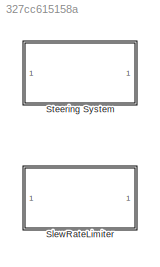
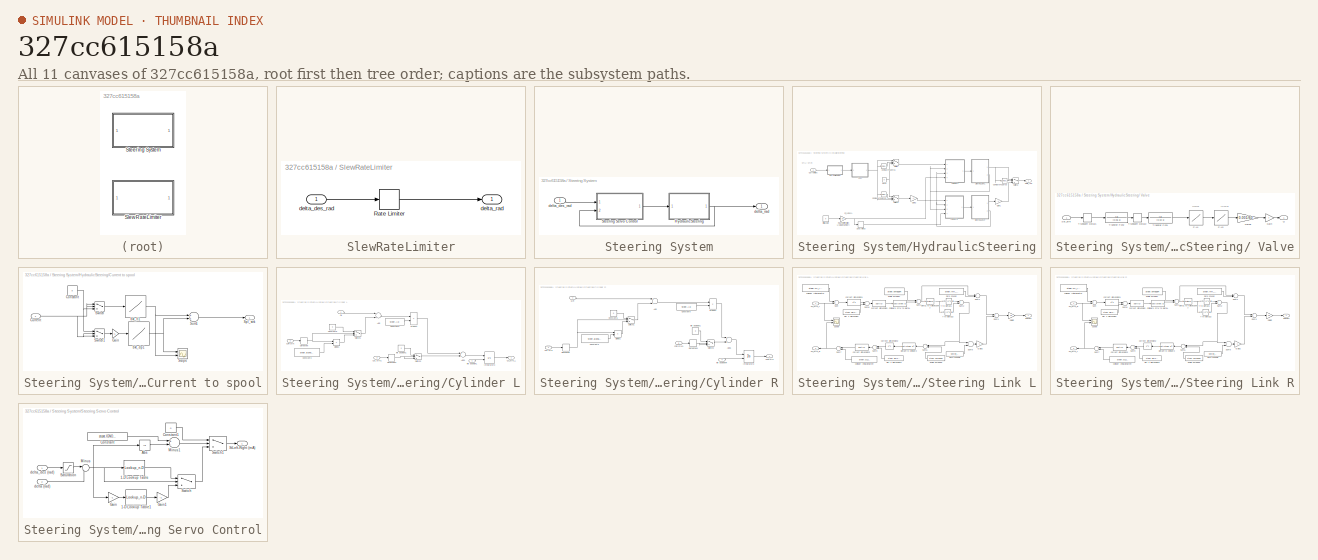
[diagram: thumbnail index - all 11 canvases of the model, root first then tree order]
MODEL slx_327cc615158a
KIND model
CONFIG AbsTol = auto
CONFIG EnableMultiTasking = off
CONFIG FixedStep = auto
CONFIG MaxStep = auto
CONFIG MinStep = auto
CONFIG RelTol = 1e-3
CONFIG SampleTimeConstraint = Unconstrained
CONFIG Solver = VariableStepAuto
CONFIG SolverName = VariableStepAuto
CONFIG StartTime = 0.0
CONFIG StopTime = 10.0
BLOCK [SubSystem] SlewRateLimiter
  Ports = [1, 1]
  RequestExecContextInheritance = off
BLOCK [RateLimiter] SlewRateLimiter/Rate Limiter
  FallingSlewLimit = -steer.deltaRateMax_radps
  RisingSlewLimit = steer.deltaRateMax_radps
  SampleTimeMode = inherited
BLOCK [Inport] SlewRateLimiter/delta_des_rad
  IconDisplay = Port number
BLOCK [Outport] SlewRateLimiter/delta_rad
  IconDisplay = Port number
BLOCK [SubSystem] Steering System
  Ports = [1, 1]
  RequestExecContextInheritance = off
BLOCK [SubSystem] Steering System/HydraulicSteering
  Description = Current: STバルブスプール電流の (右出\nST_0: ステア角 初期値
  Ports = [1, 1]
  RequestExecContextInheritance = off
  ShowPortLabels = SignalName
BLOCK [SubSystem] Steering System/HydraulicSteering/ Valve
  Ports = [1, 1]
  RequestExecContextInheritance = off
BLOCK [Gain] Steering System/HydraulicSteering/ Valve/Gain
  Gain = 7
  OutDataTypeStr = Inherit: Inherit via internal rule
  ParamDataTypeStr = Inherit: Inherit via internal rule
  SaturateOnIntegerOverflow = off
BLOCK [Gain] Steering System/HydraulicSteering/ Valve/Gain5
  Gain = 0.001/60
BLOCK [Lookup] Steering System/HydraulicSteering/ Valve/P-L1
  InputValues = [-7 -6 -5.5 -5 -4 -3 -2 0 2 3 4 5 5.5 6 7]
  Table = [-35 -15 -9 -7.4 -4.2 -1.4 0 0 0 1.4 4.2 7.4 9 15 35]
BLOCK [Lookup] Steering System/HydraulicSteering/ Valve/P-L3
  InputValues = [-35 -15 -7.4 -5.8 -4.2 -2.8 -1.4 -0.7 -0.28 0 0.28 0.7 1.4 2.8 4.2 5.8 7.4 15 35]
  Table = [-35.5 -15.3 -9.7 -7.4 -5.4 -3.6 -2.15 -1.1 -0.6 0 0.6 1.1 2.15 3.6 5.4 7.4 9.7 15.3 35.5]
BLOCK [Outport] Steering System/HydraulicSteering/ Valve/Q
  IconDisplay = Port number
BLOCK [Inport] Steering System/HydraulicSteering/ Valve/Spl_strk
  IconDisplay = Port number
BLOCK [TransferFcn] Steering System/HydraulicSteering/ Valve/Transfer Fcn1
  Denominator = [0.02 1]
BLOCK [TransferFcn] Steering System/HydraulicSteering/ Valve/Transfer Fcn2
  Denominator = [0.06 1]
BLOCK [TransportDelay] Steering System/HydraulicSteering/ Valve/Transport Delay1
  DelayTime = 0.1
  Ports = [1, 1]
BLOCK [TransportDelay] Steering System/HydraulicSteering/ Valve/Transport Delay2
  DelayTime = 0.05
  Ports = [1, 1]
BLOCK [Reference] Steering System/HydraulicSteering/Compare To Zero1  REF=simulink/Logic and Bit
Operations/Compare
To Zero
  Ports = [1, 1]
  SourceBlock = simulink/Logic and Bit\nOperations/Compare\nTo Zero
  SourceProductBaseCode = SL
  SourceProductName = Simulink
  SourceType = Compare To Zero
BLOCK [Reference] Steering System/HydraulicSteering/Compare To Zero2  REF=simulink/Logic and Bit
Operations/Compare
To Zero
  Ports = [1, 1]
  SourceBlock = simulink/Logic and Bit\nOperations/Compare\nTo Zero
  SourceProductBaseCode = SL
  SourceProductName = Simulink
  SourceType = Compare To Zero
BLOCK [Reference] Steering System/HydraulicSteering/Compare To Zero3  REF=simulink/Logic and Bit
Operations/Compare
To Zero
  Ports = [1, 1]
  SourceBlock = simulink/Logic and Bit\nOperations/Compare\nTo Zero
  SourceProductBaseCode = SL
  SourceProductName = Simulink
  SourceType = Compare To Zero
BLOCK [SubSystem] Steering System/HydraulicSteering/Current to spool
  Ports = [1, 1]
  RequestExecContextInheritance = off
BLOCK [Constant] Steering System/HydraulicSteering/Current to spool/Constant
  Value = 0
BLOCK [Inport] Steering System/HydraulicSteering/Current to spool/Current
  IconDisplay = Port number
BLOCK [Gain] Steering System/HydraulicSteering/Current to spool/Gain
  Gain = -1
  OutDataTypeStr = Inherit: Inherit via internal rule
  ParamDataTypeStr = Inherit: Inherit via internal rule
  SaturateOnIntegerOverflow = off
BLOCK [Scope] Steering System/HydraulicSteering/Current to spool/Scope
  Floating = off
  NumInputPorts = 2
  Ports = [2]
  ScopeSpecificationString = C++SS(StrPVP('Location','[1585, 68, 2247, 528]'),StrPVP('Open','off'),StrPVP('ZoomMode','yonly'),MxPVP('AxesTitles',53,'struct(''axes1'',''%<SignalLabel>'',''axes2'',''%<SignalLabel>'')'),StrPVP('YMin','-5~-5'),StrPVP('YMax','5~5'),StrPVP('SaveName','ScopeData4'),StrPVP('DataFormat','StructureWithTime'),StrPVP('BlockParamSampleTime','0'),StrPVP('LimitDataPoints','on'),StrPVP('Decimation','1'),StrP...<+34ch>
BLOCK [Outport] Steering System/HydraulicSteering/Current to spool/Spl_strk
  IconDisplay = Port number
BLOCK [Sum] Steering System/HydraulicSteering/Current to spool/Sum1
  InputSameDT = off
  OutDataTypeStr = Inherit: Inherit via internal rule
  Ports = [2, 1]
BLOCK [Switch] Steering System/HydraulicSteering/Current to spool/Switch
  InputSameDT = off
  SaturateOnIntegerOverflow = off
BLOCK [Switch] Steering System/HydraulicSteering/Current to spool/Switch1
  InputSameDT = off
  SaturateOnIntegerOverflow = off
BLOCK [Lookup] Steering System/HydraulicSteering/Current to spool/bkt_dp1
  InputValues = [0 400 450 500 550 600 650 1000]
  Table = [0 -2 -3 -4 -5 -6 -7 -7]
BLOCK [Lookup] Steering System/HydraulicSteering/Current to spool/bkt_tl1
  InputValues = [0 400 450 500 550 600 650 1000]
  Table = [0 2 3 4 5 6 7 7]
BLOCK [Inport] Steering System/HydraulicSteering/Current[mA]
  IconDisplay = Port number
BLOCK [SubSystem] Steering System/HydraulicSteering/Cylinder L
  Ports = [4, 1]
  RequestExecContextInheritance = off
BLOCK [Sum] Steering System/HydraulicSteering/Cylinder L/Add
  InputSameDT = off
  OutDataTypeStr = Inherit: Inherit via internal rule
  Ports = [2, 1]
  SaturateOnIntegerOverflow = off
BLOCK [Sum] Steering System/HydraulicSteering/Cylinder L/Add1
  InputSameDT = off
  OutDataTypeStr = Inherit: Inherit via internal rule
  Ports = [2, 1]
  SaturateOnIntegerOverflow = off
BLOCK [Constant] Steering System/HydraulicSteering/Cylinder L/Constant3
  Value = steer.alpha*steer.Ap
BLOCK [Constant] Steering System/HydraulicSteering/Cylinder L/Constant5
  Value = steer.Ap
BLOCK [Constant] Steering System/HydraulicSteering/Cylinder L/Constant6
  Value = 0
BLOCK [Inport] Steering System/HydraulicSteering/Cylinder L/CylL strk1
  IconDisplay = Port number
  Port = 3
BLOCK [Inport] Steering System/HydraulicSteering/Cylinder L/CylR strk
  IconDisplay = Port number
  Port = 2
BLOCK [Outport] Steering System/HydraulicSteering/Cylinder L/Cyl_strk_L
  IconDisplay = Port number
BLOCK [Derivative] Steering System/HydraulicSteering/Cylinder L/Derivative
BLOCK [Derivative] Steering System/HydraulicSteering/Cylinder L/Derivative1
BLOCK [Product] Steering System/HydraulicSteering/Cylinder L/Divide1
  InputSameDT = off
  Inputs = **
  OutDataTypeStr = Inherit: Inherit via internal rule
  Ports = [2, 1]
  RndMeth = Floor
  SaturateOnIntegerOverflow = off
BLOCK [Integrator] Steering System/HydraulicSteering/Cylinder L/Integrator3
  InitialConditionSource = external
  LimitOutput = on
  LowerSaturationLimit = steer.xpmin
  Ports = [2, 1]
  UpperSaturationLimit = steer.xpmax
BLOCK [Product] Steering System/HydraulicSteering/Cylinder L/Product
  InputSameDT = off
  Inputs = */
  OutDataTypeStr = Inherit: Inherit via internal rule
  Ports = [2, 1]
  SaturateOnIntegerOverflow = off
BLOCK [Inport] Steering System/HydraulicSteering/Cylinder L/QL
  IconDisplay = Port number
BLOCK [Switch] Steering System/HydraulicSteering/Cylinder L/Switch1
  Criteria = u2 > Threshold
  InputSameDT = off
  SaturateOnIntegerOverflow = off
BLOCK [Switch] Steering System/HydraulicSteering/Cylinder L/Switch2
  Criteria = u2 > Threshold
  InputSameDT = off
  SaturateOnIntegerOverflow = off
BLOCK [Constant] Steering System/HydraulicSteering/Cylinder L/init position1
  Value = 0
BLOCK [Inport] Steering System/HydraulicSteering/Cylinder L/init positionL
  IconDisplay = Port number
  Port = 4
BLOCK [SubSystem] Steering System/HydraulicSteering/Cylinder R
  Ports = [4, 1]
  RequestExecContextInheritance = off
BLOCK [Sum] Steering System/HydraulicSteering/Cylinder R/Add
  InputSameDT = off
  OutDataTypeStr = Inherit: Inherit via internal rule
  Ports = [2, 1]
  SaturateOnIntegerOverflow = off
BLOCK [Sum] Steering System/HydraulicSteering/Cylinder R/Add1
  InputSameDT = off
  OutDataTypeStr = Inherit: Inherit via internal rule
  Ports = [2, 1]
  SaturateOnIntegerOverflow = off
BLOCK [Constant] Steering System/HydraulicSteering/Cylinder R/Constant3
  Value = steer.alpha*steer.Ap
BLOCK [Constant] Steering System/HydraulicSteering/Cylinder R/Constant5
  Value = steer.Ap
BLOCK [Constant] Steering System/HydraulicSteering/Cylinder R/Constant6
  Value = 0
BLOCK [Inport] Steering System/HydraulicSteering/Cylinder R/CylL strk
  IconDisplay = Port number
  Port = 2
BLOCK [Outport] Steering System/HydraulicSteering/Cylinder R/CylR strk
  IconDisplay = Port number
BLOCK [Inport] Steering System/HydraulicSteering/Cylinder R/CylR strk1
  IconDisplay = Port number
  Port = 3
BLOCK [Derivative] Steering System/HydraulicSteering/Cylinder R/Derivative
BLOCK [Derivative] Steering System/HydraulicSteering/Cylinder R/Derivative1
BLOCK [Product] Steering System/HydraulicSteering/Cylinder R/Divide1
  InputSameDT = off
  Inputs = **
  OutDataTypeStr = Inherit: Inherit via internal rule
  Ports = [2, 1]
  RndMeth = Floor
  SaturateOnIntegerOverflow = off
BLOCK [Integrator] Steering System/HydraulicSteering/Cylinder R/Integrator3
  InitialConditionSource = external
  LimitOutput = on
  LowerSaturationLimit = steer.xpmin
  Ports = [2, 1]
  UpperSaturationLimit = steer.xpmax
BLOCK [Product] Steering System/HydraulicSteering/Cylinder R/Product
  InputSameDT = off
  Inputs = */
  OutDataTypeStr = Inherit: Inherit via internal rule
  Ports = [2, 1]
  SaturateOnIntegerOverflow = off
BLOCK [Inport] Steering System/HydraulicSteering/Cylinder R/QR
  IconDisplay = Port number
BLOCK [Switch] Steering System/HydraulicSteering/Cylinder R/Switch1
  Criteria = u2 > Threshold
  InputSameDT = off
  SaturateOnIntegerOverflow = off
BLOCK [Switch] Steering System/HydraulicSteering/Cylinder R/Switch2
  Criteria = u2 > Threshold
  InputSameDT = off
  SaturateOnIntegerOverflow = off
BLOCK [Constant] Steering System/HydraulicSteering/Cylinder R/init position1
  Value = 0
BLOCK [Inport] Steering System/HydraulicSteering/Cylinder R/init positionR
  IconDisplay = Port number
  Port = 4
BLOCK [Gain] Steering System/HydraulicSteering/Gain1
  Gain = -1
  OutDataTypeStr = Inherit: Inherit via internal rule
  ParamDataTypeStr = Inherit: Inherit via internal rule
  SaturateOnIntegerOverflow = off
BLOCK [Gain] Steering System/HydraulicSteering/Gain2
  Gain = -1
  OutDataTypeStr = Inherit: Inherit via internal rule
  ParamDataTypeStr = Inherit: Inherit via internal rule
  SaturateOnIntegerOverflow = off
BLOCK [Constant] Steering System/HydraulicSteering/Initial Angle
  Value = 0
BLOCK [Gain] Steering System/HydraulicSteering/Rad To initPositionL (Magic Number)
  Gain = 0.5
  OutDataTypeStr = Inherit: Inherit via internal rule
  ParamDataTypeStr = Inherit: Inherit via internal rule
  SaturateOnIntegerOverflow = off
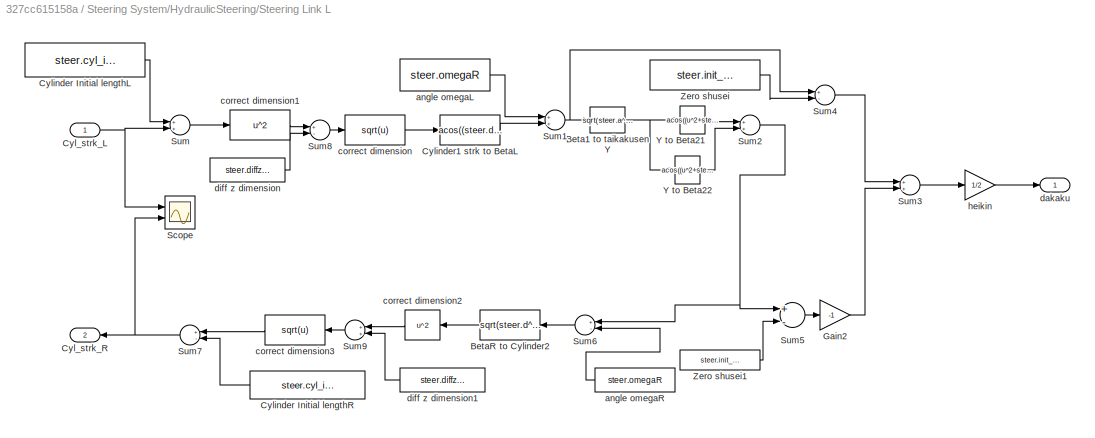
BLOCK [SubSystem] Steering System/HydraulicSteering/Steering Link L
  Ports = [1, 2]
  RequestExecContextInheritance = off
BLOCK [Fcn] Steering System/HydraulicSteering/Steering Link L/Beta1 to taikakusenY
  Expr = sqrt(steer.a^2+steer.b^2-2*steer.a*steer.b*cos(u))
BLOCK [Fcn] Steering System/HydraulicSteering/Steering Link L/BetaR to Cylinder2
  Expr = sqrt(steer.d^2+steer.e^2-2*steer.d*steer.e*cos(u))
BLOCK [Inport] Steering System/HydraulicSteering/Steering Link L/Cyl_strk_L
  IconDisplay = Port number
BLOCK [Outport] Steering System/HydraulicSteering/Steering Link L/Cyl_strk_R
  IconDisplay = Port number
  Port = 2
BLOCK [Constant] Steering System/HydraulicSteering/Steering Link L/Cylinder Initial lengthL
  Value = steer.cyl_init_length
BLOCK [Constant] Steering System/HydraulicSteering/Steering Link L/Cylinder Initial lengthR
  Value = steer.cyl_init_length
BLOCK [Fcn] Steering System/HydraulicSteering/Steering Link L/Cylinder1 strk to BetaL
  Expr = acos((steer.d^2+steer.e^2-u^2)/(2*steer.d*steer.e))
BLOCK [Gain] Steering System/HydraulicSteering/Steering Link L/Gain2
  Gain = -1
  OutDataTypeStr = Inherit: Inherit via internal rule
  ParamDataTypeStr = Inherit: Inherit via internal rule
  SaturateOnIntegerOverflow = off
BLOCK [Scope] Steering System/HydraulicSteering/Steering Link L/Scope
  Floating = off
  NumInputPorts = 2
  Ports = [2]
  ScopeSpecificationString = C++SS(StrPVP('Location','[280, 216, 942, 676]'),StrPVP('Open','off'),StrPVP('ZoomMode','yonly'),MxPVP('AxesTitles',53,'struct(''axes1'',''%<SignalLabel>'',''axes2'',''%<SignalLabel>'')'),StrPVP('YMin','-5~-5'),StrPVP('YMax','5~5'),StrPVP('SaveName','ScopeData2'),StrPVP('DataFormat','StructureWithTime'),StrPVP('BlockParamSampleTime','0'),StrPVP('LimitDataPoints','on'),StrPVP('Decimation','1'),StrPV...<+33ch>
BLOCK [Sum] Steering System/HydraulicSteering/Steering Link L/Sum
  InputSameDT = off
  OutDataTypeStr = Inherit: Inherit via internal rule
  Ports = [2, 1]
  SaturateOnIntegerOverflow = off
BLOCK [Sum] Steering System/HydraulicSteering/Steering Link L/Sum1
  InputSameDT = off
  OutDataTypeStr = Inherit: Inherit via internal rule
  Ports = [2, 1]
  SaturateOnIntegerOverflow = off
BLOCK [Sum] Steering System/HydraulicSteering/Steering Link L/Sum2
  InputSameDT = off
  OutDataTypeStr = Inherit: Inherit via internal rule
  Ports = [2, 1]
  SaturateOnIntegerOverflow = off
BLOCK [Sum] Steering System/HydraulicSteering/Steering Link L/Sum3
  InputSameDT = off
  OutDataTypeStr = Inherit: Inherit via internal rule
  Ports = [2, 1]
  SaturateOnIntegerOverflow = off
BLOCK [Sum] Steering System/HydraulicSteering/Steering Link L/Sum4
  InputSameDT = off
  Inputs = +-
  OutDataTypeStr = Inherit: Inherit via internal rule
  Ports = [2, 1]
  SaturateOnIntegerOverflow = off
BLOCK [Sum] Steering System/HydraulicSteering/Steering Link L/Sum5
  InputSameDT = off
  Inputs = +-
  OutDataTypeStr = Inherit: Inherit via internal rule
  Ports = [2, 1]
  SaturateOnIntegerOverflow = off
BLOCK [Sum] Steering System/HydraulicSteering/Steering Link L/Sum6
  InputSameDT = off
  Inputs = +-
  OutDataTypeStr = Inherit: Inherit via internal rule
  Ports = [2, 1]
  SaturateOnIntegerOverflow = off
BLOCK [Sum] Steering System/HydraulicSteering/Steering Link L/Sum7
  InputSameDT = off
  Inputs = +-
  OutDataTypeStr = Inherit: Inherit via internal rule
  Ports = [2, 1]
  SaturateOnIntegerOverflow = off
BLOCK [Sum] Steering System/HydraulicSteering/Steering Link L/Sum8
  InputSameDT = off
  Inputs = +-
  OutDataTypeStr = Inherit: Inherit via internal rule
  Ports = [2, 1]
  SaturateOnIntegerOverflow = off
BLOCK [Sum] Steering System/HydraulicSteering/Steering Link L/Sum9
  InputSameDT = off
  OutDataTypeStr = Inherit: Inherit via internal rule
  Ports = [2, 1]
  SaturateOnIntegerOverflow = off
BLOCK [Fcn] Steering System/HydraulicSteering/Steering Link L/Y to Beta21
  Expr = acos((u^2+steer.a^2-steer.c^2)/(2*steer.a*u))
BLOCK [Fcn] Steering System/HydraulicSteering/Steering Link L/Y to Beta22
  Expr = acos((u^2+steer.b^2-steer.a^2)/(2*steer.b*u))
BLOCK [Constant] Steering System/HydraulicSteering/Steering Link L/Zero shusei
  Value = steer.init_beta1
BLOCK [Constant] Steering System/HydraulicSteering/Steering Link L/Zero shusei1
  Value = steer.init_beta1
BLOCK [Constant] Steering System/HydraulicSteering/Steering Link L/angle omegaL
  Value = steer.omegaR
BLOCK [Constant] Steering System/HydraulicSteering/Steering Link L/angle omegaR
  Value = steer.omegaR
BLOCK [Fcn] Steering System/HydraulicSteering/Steering Link L/correct dimension
  Expr = sqrt(u)
BLOCK [Fcn] Steering System/HydraulicSteering/Steering Link L/correct dimension1
  Expr = u^2
BLOCK [Fcn] Steering System/HydraulicSteering/Steering Link L/correct dimension2
  Expr = u^2
BLOCK [Fcn] Steering System/HydraulicSteering/Steering Link L/correct dimension3
  Expr = sqrt(u)
BLOCK [Outport] Steering System/HydraulicSteering/Steering Link L/dakaku
  IconDisplay = Port number
BLOCK [Constant] Steering System/HydraulicSteering/Steering Link L/diff z dimension
  Value = steer.diffz^2
BLOCK [Constant] Steering System/HydraulicSteering/Steering Link L/diff z dimension1
  Value = steer.diffz^2
BLOCK [Gain] Steering System/HydraulicSteering/Steering Link L/heikin
  Gain = 1/2
  OutDataTypeStr = Inherit: Inherit via internal rule
  ParamDataTypeStr = Inherit: Inherit via internal rule
  SaturateOnIntegerOverflow = off
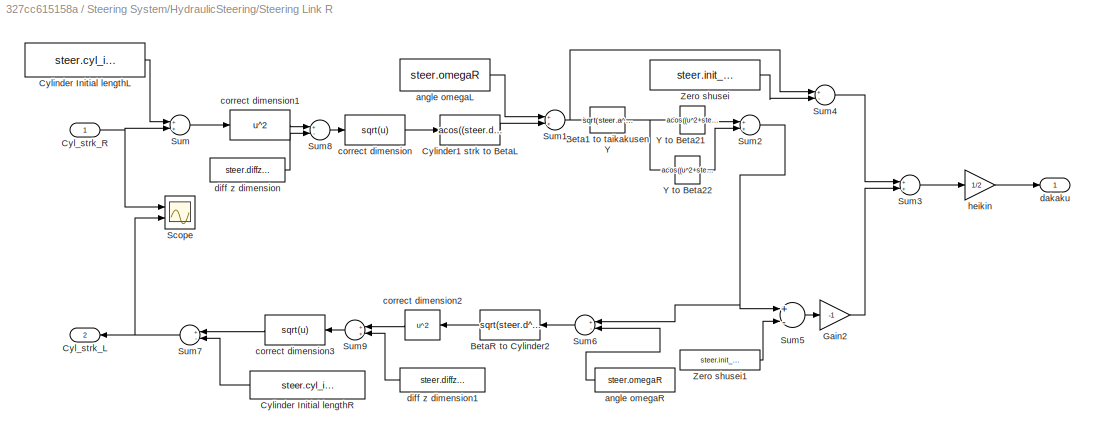
BLOCK [SubSystem] Steering System/HydraulicSteering/Steering Link R
  Ports = [1, 2]
  RequestExecContextInheritance = off
BLOCK [Fcn] Steering System/HydraulicSteering/Steering Link R/Beta1 to taikakusenY
  Expr = sqrt(steer.a^2+steer.b^2-2*steer.a*steer.b*cos(u))
BLOCK [Fcn] Steering System/HydraulicSteering/Steering Link R/BetaR to Cylinder2
  Expr = sqrt(steer.d^2+steer.e^2-2*steer.d*steer.e*cos(u))
BLOCK [Outport] Steering System/HydraulicSteering/Steering Link R/Cyl_strk_L
  IconDisplay = Port number
  Port = 2
BLOCK [Inport] Steering System/HydraulicSteering/Steering Link R/Cyl_strk_R
  IconDisplay = Port number
BLOCK [Constant] Steering System/HydraulicSteering/Steering Link R/Cylinder Initial lengthL
  Value = steer.cyl_init_length
BLOCK [Constant] Steering System/HydraulicSteering/Steering Link R/Cylinder Initial lengthR
  Value = steer.cyl_init_length
BLOCK [Fcn] Steering System/HydraulicSteering/Steering Link R/Cylinder1 strk to BetaL
  Expr = acos((steer.d^2+steer.e^2-u^2)/(2*steer.d*steer.e))
BLOCK [Gain] Steering System/HydraulicSteering/Steering Link R/Gain2
  Gain = -1
  OutDataTypeStr = Inherit: Inherit via internal rule
  ParamDataTypeStr = Inherit: Inherit via internal rule
  SaturateOnIntegerOverflow = off
BLOCK [Scope] Steering System/HydraulicSteering/Steering Link R/Scope
  Floating = off
  NumInputPorts = 2
  Ports = [2]
  ScopeSpecificationString = C++SS(StrPVP('Location','[280, 216, 942, 676]'),StrPVP('Open','off'),StrPVP('ZoomMode','yonly'),MxPVP('AxesTitles',53,'struct(''axes1'',''%<SignalLabel>'',''axes2'',''%<SignalLabel>'')'),StrPVP('YMin','-5~-5'),StrPVP('YMax','5~5'),StrPVP('SaveName','ScopeData2'),StrPVP('DataFormat','StructureWithTime'),StrPVP('BlockParamSampleTime','0'),StrPVP('LimitDataPoints','on'),StrPVP('Decimation','1'),StrPV...<+33ch>
BLOCK [Sum] Steering System/HydraulicSteering/Steering Link R/Sum
  InputSameDT = off
  OutDataTypeStr = Inherit: Inherit via internal rule
  Ports = [2, 1]
  SaturateOnIntegerOverflow = off
BLOCK [Sum] Steering System/HydraulicSteering/Steering Link R/Sum1
  InputSameDT = off
  OutDataTypeStr = Inherit: Inherit via internal rule
  Ports = [2, 1]
  SaturateOnIntegerOverflow = off
BLOCK [Sum] Steering System/HydraulicSteering/Steering Link R/Sum2
  InputSameDT = off
  OutDataTypeStr = Inherit: Inherit via internal rule
  Ports = [2, 1]
  SaturateOnIntegerOverflow = off
BLOCK [Sum] Steering System/HydraulicSteering/Steering Link R/Sum3
  InputSameDT = off
  OutDataTypeStr = Inherit: Inherit via internal rule
  Ports = [2, 1]
  SaturateOnIntegerOverflow = off
BLOCK [Sum] Steering System/HydraulicSteering/Steering Link R/Sum4
  InputSameDT = off
  Inputs = +-
  OutDataTypeStr = Inherit: Inherit via internal rule
  Ports = [2, 1]
  SaturateOnIntegerOverflow = off
BLOCK [Sum] Steering System/HydraulicSteering/Steering Link R/Sum5
  InputSameDT = off
  Inputs = +-
  OutDataTypeStr = Inherit: Inherit via internal rule
  Ports = [2, 1]
  SaturateOnIntegerOverflow = off
BLOCK [Sum] Steering System/HydraulicSteering/Steering Link R/Sum6
  InputSameDT = off
  Inputs = +-
  OutDataTypeStr = Inherit: Inherit via internal rule
  Ports = [2, 1]
  SaturateOnIntegerOverflow = off
BLOCK [Sum] Steering System/HydraulicSteering/Steering Link R/Sum7
  InputSameDT = off
  Inputs = +-
  OutDataTypeStr = Inherit: Inherit via internal rule
  Ports = [2, 1]
  SaturateOnIntegerOverflow = off
BLOCK [Sum] Steering System/HydraulicSteering/Steering Link R/Sum8
  InputSameDT = off
  Inputs = +-
  OutDataTypeStr = Inherit: Inherit via internal rule
  Ports = [2, 1]
  SaturateOnIntegerOverflow = off
BLOCK [Sum] Steering System/HydraulicSteering/Steering Link R/Sum9
  InputSameDT = off
  OutDataTypeStr = Inherit: Inherit via internal rule
  Ports = [2, 1]
  SaturateOnIntegerOverflow = off
BLOCK [Fcn] Steering System/HydraulicSteering/Steering Link R/Y to Beta21
  Expr = acos((u^2+steer.a^2-steer.c^2)/(2*steer.a*u))
BLOCK [Fcn] Steering System/HydraulicSteering/Steering Link R/Y to Beta22
  Expr = acos((u^2+steer.b^2-steer.a^2)/(2*steer.b*u))
BLOCK [Constant] Steering System/HydraulicSteering/Steering Link R/Zero shusei
  Value = steer.init_beta1
BLOCK [Constant] Steering System/HydraulicSteering/Steering Link R/Zero shusei1
  Value = steer.init_beta1
BLOCK [Constant] Steering System/HydraulicSteering/Steering Link R/angle omegaL
  Value = steer.omegaR
BLOCK [Constant] Steering System/HydraulicSteering/Steering Link R/angle omegaR
  Value = steer.omegaR
BLOCK [Fcn] Steering System/HydraulicSteering/Steering Link R/correct dimension
  Expr = sqrt(u)
BLOCK [Fcn] Steering System/HydraulicSteering/Steering Link R/correct dimension1
  Expr = u^2
BLOCK [Fcn] Steering System/HydraulicSteering/Steering Link R/correct dimension2
  Expr = u^2
BLOCK [Fcn] Steering System/HydraulicSteering/Steering Link R/correct dimension3
  Expr = sqrt(u)
BLOCK [Outport] Steering System/HydraulicSteering/Steering Link R/dakaku
  IconDisplay = Port number
BLOCK [Constant] Steering System/HydraulicSteering/Steering Link R/diff z dimension
  Value = steer.diffz^2
BLOCK [Constant] Steering System/HydraulicSteering/Steering Link R/diff z dimension1
  Value = steer.diffz^2
BLOCK [Gain] Steering System/HydraulicSteering/Steering Link R/heikin
  Gain = 1/2
  OutDataTypeStr = Inherit: Inherit via internal rule
  ParamDataTypeStr = Inherit: Inherit via internal rule
  SaturateOnIntegerOverflow = off
BLOCK [Switch] Steering System/HydraulicSteering/Switch
  InputSameDT = off
  SaturateOnIntegerOverflow = off
BLOCK [Switch] Steering System/HydraulicSteering/Switch1
  InputSameDT = off
  SaturateOnIntegerOverflow = off
BLOCK [Switch] Steering System/HydraulicSteering/Switch2
  InputSameDT = off
  SaturateOnIntegerOverflow = off
BLOCK [UnaryMinus] Steering System/HydraulicSteering/Unary Minus
BLOCK [Outport] Steering System/HydraulicSteering/delta_rad
  IconDisplay = Port number
BLOCK [Constant] Steering System/HydraulicSteering/zero
  Value = 0
BLOCK [SubSystem] Steering System/Steering Servo Control
  Ports = [2, 1]
  RequestExecContextInheritance = off
BLOCK [Lookup_n-D] Steering System/Steering Servo Control/1-D Lookup Table
  BreakpointsForDimension1 = [0 0.03 0.06 1]
  InternalRulePriority = Speed
  NumberOfTableDimensions = 1
  Ports = [1, 1]
  RndMeth = Simplest
  Table = [420 640 700 700]
BLOCK [Lookup_n-D] Steering System/Steering Servo Control/1-D Lookup Table1
  BreakpointsForDimension1 = [0 0.03 0.06 1]
  InternalRulePriority = Speed
  NumberOfTableDimensions = 1
  Ports = [1, 1]
  RndMeth = Simplest
  Table = [420 640 700 700]
BLOCK [Abs] Steering System/Steering Servo Control/Abs
  SaturateOnIntegerOverflow = off
BLOCK [Constant] Steering System/Steering Servo Control/Constant
  Value = stcont.IGNORE_ANGLE
BLOCK [Constant] Steering System/Steering Servo Control/Constant1
  Value = 0
BLOCK [Gain] Steering System/Steering Servo Control/Gain
  Gain = -1
  OutDataTypeStr = Inherit: Inherit via internal rule
  ParamDataTypeStr = Inherit: Inherit via internal rule
  SaturateOnIntegerOverflow = off
BLOCK [Gain] Steering System/Steering Servo Control/Gain1
  Gain = -1
  OutDataTypeStr = Inherit: Inherit via internal rule
  ParamDataTypeStr = Inherit: Inherit via internal rule
  SaturateOnIntegerOverflow = off
BLOCK [Sum] Steering System/Steering Servo Control/Minus
  IconShape = round
  InputSameDT = off
  Inputs = |+-
  OutDataTypeStr = Inherit: Inherit via internal rule
  Ports = [2, 1]
  SaturateOnIntegerOverflow = off
BLOCK [Sum] Steering System/Steering Servo Control/Minus1
  InputSameDT = off
  Inputs = +-
  OutDataTypeStr = Inherit: Inherit via internal rule
  Ports = [2, 1]
  SaturateOnIntegerOverflow = off
BLOCK [Saturate] Steering System/Steering Servo Control/Saturation
  InputPortMap = u0
  LowerLimit = -stcont.MAX_STEERING_RAD
  Ports = [1, 1]
  UpperLimit = stcont.MAX_STEERING_RAD
BLOCK [Outport] Steering System/Steering Servo Control/StLeft-Right (mA)
  IconDisplay = Port number
BLOCK [Switch] Steering System/Steering Servo Control/Switch
  Criteria = u2 > Threshold
  InputSameDT = off
  SaturateOnIntegerOverflow = off
BLOCK [Switch] Steering System/Steering Servo Control/Switch1
  Criteria = u2 > Threshold
  InputSameDT = off
  SaturateOnIntegerOverflow = off
BLOCK [Inport] Steering System/Steering Servo Control/delta (rad)
  IconDisplay = Port number
  Port = 2
BLOCK [Inport] Steering System/Steering Servo Control/delta_des (rad)
  IconDisplay = Port number
BLOCK [Inport] Steering System/delta_des_rad
  IconDisplay = Port number
BLOCK [Outport] Steering System/delta_rad
  IconDisplay = Port number
ANNOTATION Steering System/HydraulicSteering: ST(L) - ST(R)
ANNOTATION Steering System/HydraulicSteering: init_potision L
ANNOTATION Steering System/HydraulicSteering/ Valve: [L/min]
ANNOTATION Steering System/HydraulicSteering/ Valve: [mm2]
LINE SlewRateLimiter/Rate Limiter:1 -> SlewRateLimiter/delta_rad:1
LINE SlewRateLimiter/delta_des_rad:1 -> SlewRateLimiter/Rate Limiter:1
LINE Steering System/HydraulicSteering/ Valve/Gain5:1 -> Steering System/HydraulicSteering/ Valve/Gain:1
LINE Steering System/HydraulicSteering/ Valve/Gain:1 -> Steering System/HydraulicSteering/ Valve/Q:1
LINE Steering System/HydraulicSteering/ Valve/P-L1:1 -> Steering System/HydraulicSteering/ Valve/P-L3:1
LINE Steering System/HydraulicSteering/ Valve/P-L3:1 -> Steering System/HydraulicSteering/ Valve/Gain5:1
LINE Steering System/HydraulicSteering/ Valve/Spl_strk:1 -> Steering System/HydraulicSteering/ Valve/Transport Delay1:1
LINE Steering System/HydraulicSteering/ Valve/Transfer Fcn1:1 -> Steering System/HydraulicSteering/ Valve/P-L1:1
LINE Steering System/HydraulicSteering/ Valve/Transfer Fcn2:1 -> Steering System/HydraulicSteering/ Valve/Transport Delay2:1
LINE Steering System/HydraulicSteering/ Valve/Transport Delay1:1 -> Steering System/HydraulicSteering/ Valve/Transfer Fcn2:1
LINE Steering System/HydraulicSteering/ Valve/Transport Delay2:1 -> Steering System/HydraulicSteering/ Valve/Transfer Fcn1:1
NET Steering System/HydraulicSteering/ Valve:1 -> Steering System/HydraulicSteering/Compare To Zero1:1, Steering System/HydraulicSteering/Compare To Zero2:1, Steering System/HydraulicSteering/Switch1:3, Steering System/HydraulicSteering/Switch:1
LINE Steering System/HydraulicSteering/Compare To Zero1:1 -> Steering System/HydraulicSteering/Switch:2
LINE Steering System/HydraulicSteering/Compare To Zero2:1 -> Steering System/HydraulicSteering/Switch1:2
LINE Steering System/HydraulicSteering/Compare To Zero3:1 -> Steering System/HydraulicSteering/Switch2:2
NET Steering System/HydraulicSteering/Current to spool/Constant:1 -> Steering System/HydraulicSteering/Current to spool/Switch1:1, Steering System/HydraulicSteering/Current to spool/Switch:3
NET Steering System/HydraulicSteering/Current to spool/Current:1 -> Steering System/HydraulicSteering/Current to spool/Switch1:2, Steering System/HydraulicSteering/Current to spool/Switch1:3, Steering System/HydraulicSteering/Current to spool/Switch:1, Steering System/HydraulicSteering/Current to spool/Switch:2
LINE Steering System/HydraulicSteering/Current to spool/Gain:1 -> Steering System/HydraulicSteering/Current to spool/bkt_dp1:1
LINE Steering System/HydraulicSteering/Current to spool/Sum1:1 -> Steering System/HydraulicSteering/Current to spool/Spl_strk:1
LINE Steering System/HydraulicSteering/Current to spool/Switch1:1 -> Steering System/HydraulicSteering/Current to spool/Gain:1
LINE Steering System/HydraulicSteering/Current to spool/Switch:1 -> Steering System/HydraulicSteering/Current to spool/bkt_tl1:1
NET Steering System/HydraulicSteering/Current to spool/bkt_dp1:1 -> Steering System/HydraulicSteering/Current to spool/Scope:1, Steering System/HydraulicSteering/Current to spool/Sum1:2
NET Steering System/HydraulicSteering/Current to spool/bkt_tl1:1 -> Steering System/HydraulicSteering/Current to spool/Scope:2, Steering System/HydraulicSteering/Current to spool/Sum1:1
LINE Steering System/HydraulicSteering/Current to spool:1 -> Steering System/HydraulicSteering/ Valve:1
LINE Steering System/HydraulicSteering/Current[mA]:1 -> Steering System/HydraulicSteering/Current to spool:1
LINE Steering System/HydraulicSteering/Cylinder L/Add1:1 -> Steering System/HydraulicSteering/Cylinder L/Integrator3:1
LINE Steering System/HydraulicSteering/Cylinder L/Add:1 -> Steering System/HydraulicSteering/Cylinder L/Product:1
LINE Steering System/HydraulicSteering/Cylinder L/Constant3:1 -> Steering System/HydraulicSteering/Cylinder L/Divide1:2
LINE Steering System/HydraulicSteering/Cylinder L/Constant5:1 -> Steering System/HydraulicSteering/Cylinder L/Product:2
LINE Steering System/HydraulicSteering/Cylinder L/Constant6:1 -> Steering System/HydraulicSteering/Cylinder L/Switch1:1
LINE Steering System/HydraulicSteering/Cylinder L/CylL strk1:1 -> Steering System/HydraulicSteering/Cylinder L/Derivative1:1
LINE Steering System/HydraulicSteering/Cylinder L/CylR strk:1 -> Steering System/HydraulicSteering/Cylinder L/Derivative:1
NET Steering System/HydraulicSteering/Cylinder L/Derivative1:1 -> Steering System/HydraulicSteering/Cylinder L/Switch2:2, Steering System/HydraulicSteering/Cylinder L/Switch2:3
NET Steering System/HydraulicSteering/Cylinder L/Derivative:1 -> Steering System/HydraulicSteering/Cylinder L/Divide1:1, Steering System/HydraulicSteering/Cylinder L/Switch1:2
LINE Steering System/HydraulicSteering/Cylinder L/Divide1:1 -> Steering System/HydraulicSteering/Cylinder L/Switch1:3
LINE Steering System/HydraulicSteering/Cylinder L/Integrator3:1 -> Steering System/HydraulicSteering/Cylinder L/Cyl_strk_L:1
LINE Steering System/HydraulicSteering/Cylinder L/Product:1 -> Steering System/HydraulicSteering/Cylinder L/Add1:1
LINE Steering System/HydraulicSteering/Cylinder L/QL:1 -> Steering System/HydraulicSteering/Cylinder L/Add:1
LINE Steering System/HydraulicSteering/Cylinder L/Switch1:1 -> Steering System/HydraulicSteering/Cylinder L/Add:2
LINE Steering System/HydraulicSteering/Cylinder L/Switch2:1 -> Steering System/HydraulicSteering/Cylinder L/Add1:2
LINE Steering System/HydraulicSteering/Cylinder L/init position1:1 -> Steering System/HydraulicSteering/Cylinder L/Switch2:1
LINE Steering System/HydraulicSteering/Cylinder L/init positionL:1 -> Steering System/HydraulicSteering/Cylinder L/Integrator3:2
LINE Steering System/HydraulicSteering/Cylinder L:1 -> Steering System/HydraulicSteering/Steering Link L:1
LINE Steering System/HydraulicSteering/Cylinder R/Add1:1 -> Steering System/HydraulicSteering/Cylinder R/Integrator3:1
LINE Steering System/HydraulicSteering/Cylinder R/Add:1 -> Steering System/HydraulicSteering/Cylinder R/Product:1
LINE Steering System/HydraulicSteering/Cylinder R/Constant3:1 -> Steering System/HydraulicSteering/Cylinder R/Divide1:2
LINE Steering System/HydraulicSteering/Cylinder R/Constant5:1 -> Steering System/HydraulicSteering/Cylinder R/Product:2
LINE Steering System/HydraulicSteering/Cylinder R/Constant6:1 -> Steering System/HydraulicSteering/Cylinder R/Switch1:1
LINE Steering System/HydraulicSteering/Cylinder R/CylL strk:1 -> Steering System/HydraulicSteering/Cylinder R/Derivative:1
LINE Steering System/HydraulicSteering/Cylinder R/CylR strk1:1 -> Steering System/HydraulicSteering/Cylinder R/Derivative1:1
NET Steering System/HydraulicSteering/Cylinder R/Derivative1:1 -> Steering System/HydraulicSteering/Cylinder R/Switch2:2, Steering System/HydraulicSteering/Cylinder R/Switch2:3
NET Steering System/HydraulicSteering/Cylinder R/Derivative:1 -> Steering System/HydraulicSteering/Cylinder R/Divide1:1, Steering System/HydraulicSteering/Cylinder R/Switch1:2
LINE Steering System/HydraulicSteering/Cylinder R/Divide1:1 -> Steering System/HydraulicSteering/Cylinder R/Switch1:3
LINE Steering System/HydraulicSteering/Cylinder R/Integrator3:1 -> Steering System/HydraulicSteering/Cylinder R/CylR strk:1
LINE Steering System/HydraulicSteering/Cylinder R/Product:1 -> Steering System/HydraulicSteering/Cylinder R/Add1:1
LINE Steering System/HydraulicSteering/Cylinder R/QR:1 -> Steering System/HydraulicSteering/Cylinder R/Add:1
LINE Steering System/HydraulicSteering/Cylinder R/Switch1:1 -> Steering System/HydraulicSteering/Cylinder R/Add:2
LINE Steering System/HydraulicSteering/Cylinder R/Switch2:1 -> Steering System/HydraulicSteering/Cylinder R/Add1:2
LINE Steering System/HydraulicSteering/Cylinder R/init position1:1 -> Steering System/HydraulicSteering/Cylinder R/Switch2:1
LINE Steering System/HydraulicSteering/Cylinder R/init positionR:1 -> Steering System/HydraulicSteering/Cylinder R/Integrator3:2
LINE Steering System/HydraulicSteering/Cylinder R:1 -> Steering System/HydraulicSteering/Steering Link R:1
LINE Steering System/HydraulicSteering/Gain1:1 -> Steering System/HydraulicSteering/Switch2:3
LINE Steering System/HydraulicSteering/Gain2:1 -> Steering System/HydraulicSteering/Cylinder R:1
LINE Steering System/HydraulicSteering/Initial Angle:1 -> Steering System/HydraulicSteering/Rad To initPositionL (Magic Number):1
NET Steering System/HydraulicSteering/Rad To initPositionL (Magic Number):1 -> Steering System/HydraulicSteering/Cylinder L:4, Steering System/HydraulicSteering/Unary Minus:1
NET Steering System/HydraulicSteering/Steering Link L/Beta1 to taikakusenY:1 -> Steering System/HydraulicSteering/Steering Link L/Y to Beta21:1, Steering System/HydraulicSteering/Steering Link L/Y to Beta22:1
LINE Steering System/HydraulicSteering/Steering Link L/BetaR to Cylinder2:1 -> Steering System/HydraulicSteering/Steering Link L/correct dimension2:1
NET Steering System/HydraulicSteering/Steering Link L/Cyl_strk_L:1 -> Steering System/HydraulicSteering/Steering Link L/Scope:1, Steering System/HydraulicSteering/Steering Link L/Sum:2
LINE Steering System/HydraulicSteering/Steering Link L/Cylinder Initial lengthL:1 -> Steering System/HydraulicSteering/Steering Link L/Sum:1
LINE Steering System/HydraulicSteering/Steering Link L/Cylinder Initial lengthR:1 -> Steering System/HydraulicSteering/Steering Link L/Sum7:2
LINE Steering System/HydraulicSteering/Steering Link L/Cylinder1 strk to BetaL:1 -> Steering System/HydraulicSteering/Steering Link L/Sum1:2
LINE Steering System/HydraulicSteering/Steering Link L/Gain2:1 -> Steering System/HydraulicSteering/Steering Link L/Sum3:2
NET Steering System/HydraulicSteering/Steering Link L/Sum1:1 -> Steering System/HydraulicSteering/Steering Link L/Beta1 to taikakusenY:1, Steering System/HydraulicSteering/Steering Link L/Sum4:1
NET Steering System/HydraulicSteering/Steering Link L/Sum2:1 -> Steering System/HydraulicSteering/Steering Link L/Sum5:1, Steering System/HydraulicSteering/Steering Link L/Sum6:1
LINE Steering System/HydraulicSteering/Steering Link L/Sum3:1 -> Steering System/HydraulicSteering/Steering Link L/heikin:1
LINE Steering System/HydraulicSteering/Steering Link L/Sum4:1 -> Steering System/HydraulicSteering/Steering Link L/Sum3:1
LINE Steering System/HydraulicSteering/Steering Link L/Sum5:1 -> Steering System/HydraulicSteering/Steering Link L/Gain2:1
LINE Steering System/HydraulicSteering/Steering Link L/Sum6:1 -> Steering System/HydraulicSteering/Steering Link L/BetaR to Cylinder2:1
NET Steering System/HydraulicSteering/Steering Link L/Sum7:1 -> Steering System/HydraulicSteering/Steering Link L/Cyl_strk_R:1, Steering System/HydraulicSteering/Steering Link L/Scope:2
LINE Steering System/HydraulicSteering/Steering Link L/Sum8:1 -> Steering System/HydraulicSteering/Steering Link L/correct dimension:1
LINE Steering System/HydraulicSteering/Steering Link L/Sum9:1 -> Steering System/HydraulicSteering/Steering Link L/correct dimension3:1
LINE Steering System/HydraulicSteering/Steering Link L/Sum:1 -> Steering System/HydraulicSteering/Steering Link L/correct dimension1:1
LINE Steering System/HydraulicSteering/Steering Link L/Y to Beta21:1 -> Steering System/HydraulicSteering/Steering Link L/Sum2:1
LINE Steering System/HydraulicSteering/Steering Link L/Y to Beta22:1 -> Steering System/HydraulicSteering/Steering Link L/Sum2:2
LINE Steering System/HydraulicSteering/Steering Link L/Zero shusei1:1 -> Steering System/HydraulicSteering/Steering Link L/Sum5:2
LINE Steering System/HydraulicSteering/Steering Link L/Zero shusei:1 -> Steering System/HydraulicSteering/Steering Link L/Sum4:2
LINE Steering System/HydraulicSteering/Steering Link L/angle omegaL:1 -> Steering System/HydraulicSteering/Steering Link L/Sum1:1
LINE Steering System/HydraulicSteering/Steering Link L/angle omegaR:1 -> Steering System/HydraulicSteering/Steering Link L/Sum6:2
LINE Steering System/HydraulicSteering/Steering Link L/correct dimension1:1 -> Steering System/HydraulicSteering/Steering Link L/Sum8:1
LINE Steering System/HydraulicSteering/Steering Link L/correct dimension2:1 -> Steering System/HydraulicSteering/Steering Link L/Sum9:1
LINE Steering System/HydraulicSteering/Steering Link L/correct dimension3:1 -> Steering System/HydraulicSteering/Steering Link L/Sum7:1
LINE Steering System/HydraulicSteering/Steering Link L/correct dimension:1 -> Steering System/HydraulicSteering/Steering Link L/Cylinder1 strk to BetaL:1
LINE Steering System/HydraulicSteering/Steering Link L/diff z dimension1:1 -> Steering System/HydraulicSteering/Steering Link L/Sum9:2
LINE Steering System/HydraulicSteering/Steering Link L/diff z dimension:1 -> Steering System/HydraulicSteering/Steering Link L/Sum8:2
LINE Steering System/HydraulicSteering/Steering Link L/heikin:1 -> Steering System/HydraulicSteering/Steering Link L/dakaku:1
NET Steering System/HydraulicSteering/Steering Link L:1 -> Steering System/HydraulicSteering/Compare To Zero3:1, Steering System/HydraulicSteering/Switch2:1
NET Steering System/HydraulicSteering/Steering Link L:2 -> Steering System/HydraulicSteering/Cylinder L:2, Steering System/HydraulicSteering/Cylinder R:3
NET Steering System/HydraulicSteering/Steering Link R/Beta1 to taikakusenY:1 -> Steering System/HydraulicSteering/Steering Link R/Y to Beta21:1, Steering System/HydraulicSteering/Steering Link R/Y to Beta22:1
LINE Steering System/HydraulicSteering/Steering Link R/BetaR to Cylinder2:1 -> Steering System/HydraulicSteering/Steering Link R/correct dimension2:1
NET Steering System/HydraulicSteering/Steering Link R/Cyl_strk_R:1 -> Steering System/HydraulicSteering/Steering Link R/Scope:1, Steering System/HydraulicSteering/Steering Link R/Sum:2
LINE Steering System/HydraulicSteering/Steering Link R/Cylinder Initial lengthL:1 -> Steering System/HydraulicSteering/Steering Link R/Sum:1
LINE Steering System/HydraulicSteering/Steering Link R/Cylinder Initial lengthR:1 -> Steering System/HydraulicSteering/Steering Link R/Sum7:2
LINE Steering System/HydraulicSteering/Steering Link R/Cylinder1 strk to BetaL:1 -> Steering System/HydraulicSteering/Steering Link R/Sum1:2
LINE Steering System/HydraulicSteering/Steering Link R/Gain2:1 -> Steering System/HydraulicSteering/Steering Link R/Sum3:2
NET Steering System/HydraulicSteering/Steering Link R/Sum1:1 -> Steering System/HydraulicSteering/Steering Link R/Beta1 to taikakusenY:1, Steering System/HydraulicSteering/Steering Link R/Sum4:1
NET Steering System/HydraulicSteering/Steering Link R/Sum2:1 -> Steering System/HydraulicSteering/Steering Link R/Sum5:1, Steering System/HydraulicSteering/Steering Link R/Sum6:1
LINE Steering System/HydraulicSteering/Steering Link R/Sum3:1 -> Steering System/HydraulicSteering/Steering Link R/heikin:1
LINE Steering System/HydraulicSteering/Steering Link R/Sum4:1 -> Steering System/HydraulicSteering/Steering Link R/Sum3:1
LINE Steering System/HydraulicSteering/Steering Link R/Sum5:1 -> Steering System/HydraulicSteering/Steering Link R/Gain2:1
LINE Steering System/HydraulicSteering/Steering Link R/Sum6:1 -> Steering System/HydraulicSteering/Steering Link R/BetaR to Cylinder2:1
NET Steering System/HydraulicSteering/Steering Link R/Sum7:1 -> Steering System/HydraulicSteering/Steering Link R/Cyl_strk_L:1, Steering System/HydraulicSteering/Steering Link R/Scope:2
LINE Steering System/HydraulicSteering/Steering Link R/Sum8:1 -> Steering System/HydraulicSteering/Steering Link R/correct dimension:1
LINE Steering System/HydraulicSteering/Steering Link R/Sum9:1 -> Steering System/HydraulicSteering/Steering Link R/correct dimension3:1
LINE Steering System/HydraulicSteering/Steering Link R/Sum:1 -> Steering System/HydraulicSteering/Steering Link R/correct dimension1:1
LINE Steering System/HydraulicSteering/Steering Link R/Y to Beta21:1 -> Steering System/HydraulicSteering/Steering Link R/Sum2:1
LINE Steering System/HydraulicSteering/Steering Link R/Y to Beta22:1 -> Steering System/HydraulicSteering/Steering Link R/Sum2:2
LINE Steering System/HydraulicSteering/Steering Link R/Zero shusei1:1 -> Steering System/HydraulicSteering/Steering Link R/Sum5:2
LINE Steering System/HydraulicSteering/Steering Link R/Zero shusei:1 -> Steering System/HydraulicSteering/Steering Link R/Sum4:2
LINE Steering System/HydraulicSteering/Steering Link R/angle omegaL:1 -> Steering System/HydraulicSteering/Steering Link R/Sum1:1
LINE Steering System/HydraulicSteering/Steering Link R/angle omegaR:1 -> Steering System/HydraulicSteering/Steering Link R/Sum6:2
LINE Steering System/HydraulicSteering/Steering Link R/correct dimension1:1 -> Steering System/HydraulicSteering/Steering Link R/Sum8:1
LINE Steering System/HydraulicSteering/Steering Link R/correct dimension2:1 -> Steering System/HydraulicSteering/Steering Link R/Sum9:1
LINE Steering System/HydraulicSteering/Steering Link R/correct dimension3:1 -> Steering System/HydraulicSteering/Steering Link R/Sum7:1
LINE Steering System/HydraulicSteering/Steering Link R/correct dimension:1 -> Steering System/HydraulicSteering/Steering Link R/Cylinder1 strk to BetaL:1
LINE Steering System/HydraulicSteering/Steering Link R/diff z dimension1:1 -> Steering System/HydraulicSteering/Steering Link R/Sum9:2
LINE Steering System/HydraulicSteering/Steering Link R/diff z dimension:1 -> Steering System/HydraulicSteering/Steering Link R/Sum8:2
LINE Steering System/HydraulicSteering/Steering Link R/heikin:1 -> Steering System/HydraulicSteering/Steering Link R/dakaku:1
LINE Steering System/HydraulicSteering/Steering Link R:1 -> Steering System/HydraulicSteering/Gain1:1
NET Steering System/HydraulicSteering/Steering Link R:2 -> Steering System/HydraulicSteering/Cylinder L:3, Steering System/HydraulicSteering/Cylinder R:2
LINE Steering System/HydraulicSteering/Switch1:1 -> Steering System/HydraulicSteering/Gain2:1
LINE Steering System/HydraulicSteering/Switch2:1 -> Steering System/HydraulicSteering/delta_rad:1
LINE Steering System/HydraulicSteering/Switch:1 -> Steering System/HydraulicSteering/Cylinder L:1
LINE Steering System/HydraulicSteering/Unary Minus:1 -> Steering System/HydraulicSteering/Cylinder R:4
NET Steering System/HydraulicSteering/zero:1 -> Steering System/HydraulicSteering/Switch1:1, Steering System/HydraulicSteering/Switch:3
NET Steering System/HydraulicSteering:1 -> Steering System/Steering Servo Control:2, Steering System/delta_rad:1
LINE Steering System/Steering Servo Control/1-D Lookup Table1:1 -> Steering System/Steering Servo Control/Gain1:1
LINE Steering System/Steering Servo Control/1-D Lookup Table:1 -> Steering System/Steering Servo Control/Switch:1
LINE Steering System/Steering Servo Control/Abs:1 -> Steering System/Steering Servo Control/Minus1:2
LINE Steering System/Steering Servo Control/Constant1:1 -> Steering System/Steering Servo Control/Switch1:1
LINE Steering System/Steering Servo Control/Constant:1 -> Steering System/Steering Servo Control/Minus1:1
LINE Steering System/Steering Servo Control/Gain1:1 -> Steering System/Steering Servo Control/Switch:3
LINE Steering System/Steering Servo Control/Gain:1 -> Steering System/Steering Servo Control/1-D Lookup Table1:1
LINE Steering System/Steering Servo Control/Minus1:1 -> Steering System/Steering Servo Control/Switch1:2
NET Steering System/Steering Servo Control/Minus:1 -> Steering System/Steering Servo Control/1-D Lookup Table:1, Steering System/Steering Servo Control/Abs:1, Steering System/Steering Servo Control/Gain:1, Steering System/Steering Servo Control/Switch:2
LINE Steering System/Steering Servo Control/Saturation:1 -> Steering System/Steering Servo Control/Minus:1
LINE Steering System/Steering Servo Control/Switch1:1 -> Steering System/Steering Servo Control/StLeft-Right (mA):1
LINE Steering System/Steering Servo Control/Switch:1 -> Steering System/Steering Servo Control/Switch1:3
LINE Steering System/Steering Servo Control/delta (rad):1 -> Steering System/Steering Servo Control/Minus:2
LINE Steering System/Steering Servo Control/delta_des (rad):1 -> Steering System/Steering Servo Control/Saturation:1
LINE Steering System/Steering Servo Control:1 -> Steering System/HydraulicSteering:1
LINE Steering System/delta_des_rad:1 -> Steering System/Steering Servo Control:1
note: NET lines group one-source signal fan-out (src -> all destinations, sorted); 1:1 wires keep LINE
